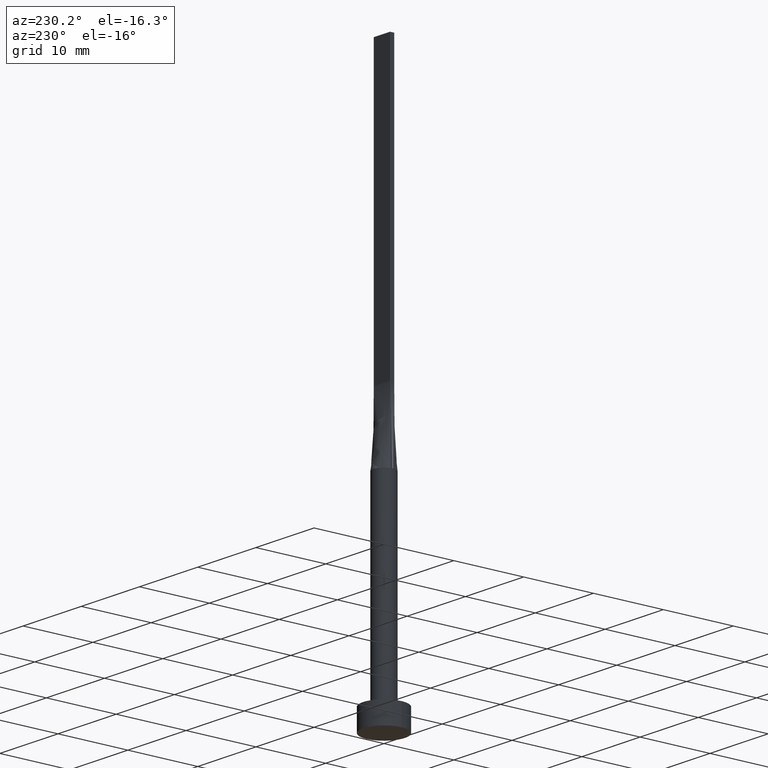
[diagram: clean part render]
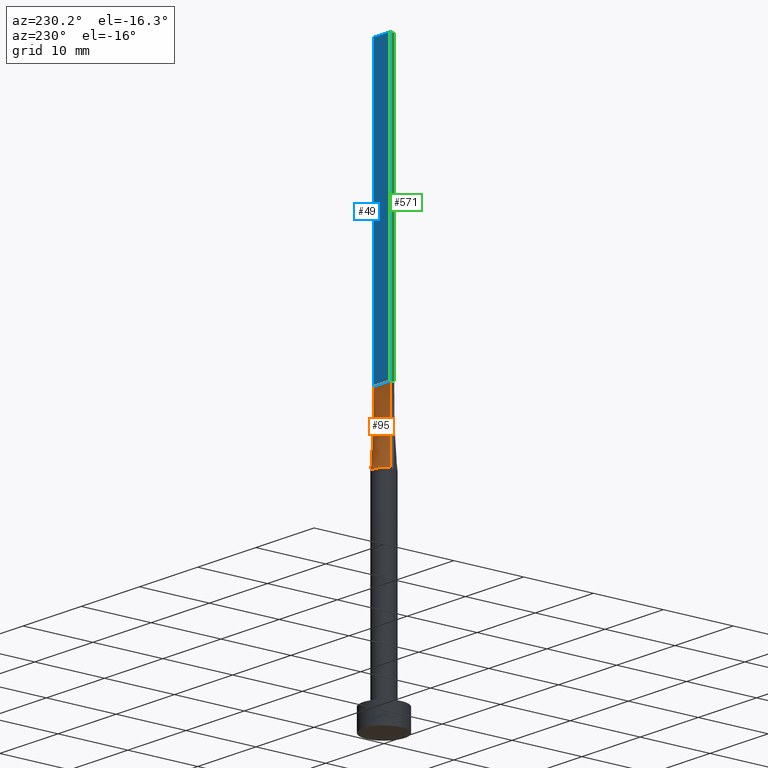
[diagram: same view with three faces highlighted in distinct colors, each labeled with its STEP entity id]
A machine part, auxiliary view with three faces highlighted in distinct colors.
Their STEP definitions:

[orange] entity #95 — the highlighted face is a freeform B-spline surface patch.
#22 = VERTEX_POINT ( 'NONE', #295 ) ;
#24 = CARTESIAN_POINT ( 'NONE',  ( 1.283333333333333437, 0.3000000000000002109, 40.00000000000000000 ) ) ;
#26 = CARTESIAN_POINT ( 'NONE',  ( 1.466825456746648992, 0.3143198820638501978, 30.00000000000000000 ) ) ;
#27 = CARTESIAN_POINT ( 'NONE',  ( -1.399999999999999689, 0.3000000000000002109, 40.00000000000000000 ) ) ;
#30 = VERTEX_POINT ( 'NONE', #244 ) ;
#31 = CARTESIAN_POINT ( 'NONE',  ( 1.261673556793541540, 0.8246322331683844098, 29.99999999999998579 ) ) ;
#34 = FACE_OUTER_BOUND ( 'NONE', #125, .T. ) ;
#35 = ORIENTED_EDGE ( 'NONE', *, *, #258, .F. ) ;
#36 = CARTESIAN_POINT ( 'NONE',  ( 1.398339371956842880, 0.5625704264602660043, 29.99999999999999645 ) ) ;
#38 = ORIENTED_EDGE ( 'NONE', *, *, #383, .F. ) ;
#39 = CARTESIAN_POINT ( 'NONE',  ( 0.7614511870148451544, 1.306864626778804883, 30.00000000000000711 ) ) ;
#55 = DIRECTION ( 'NONE',  ( -0.006670206908340766024, -0.001429330051787238700, 0.9999767324070110153 ) ) ;
#67 = CARTESIAN_POINT ( 'NONE',  ( 1.433351810558057160, 0.3071468165481550106, 35.00000000000000000 ) ) ;
#70 = VECTOR ( 'NONE', #411, 1000.000000000000000 ) ;
#77 = CARTESIAN_POINT ( 'NONE',  ( -1.261673556793542872, 0.8246322331683846318, 30.00000000000000711 ) ) ;
#78 = CARTESIAN_POINT ( 'NONE',  ( -0.9173979595380679086, 1.199399801402030397, 30.00000000000000000 ) ) ;
#79 = CARTESIAN_POINT ( 'NONE',  ( -0.8166666666666656527, 0.3000000000000002665, 40.00000000000000000 ) ) ;
#88 = CARTESIAN_POINT ( 'NONE',  ( 1.441093865018553410, 0.4338058282182615244, 30.00000000000000711 ) ) ;
#95 = ADVANCED_FACE ( 'NONE', ( #34 ), #536, .T. ) ;
#99 = LINE ( 'NONE', #107, #167 ) ;
#105 = CARTESIAN_POINT ( 'NONE',  ( -1.399999999999999689, 0.3000000000000002109, 40.00000000000000000 ) ) ;
#107 = CARTESIAN_POINT ( 'NONE',  ( -1.433351810558057160, 0.3071468165481554546, 35.00000000000000000 ) ) ;
#119 = B_SPLINE_CURVE_WITH_KNOTS ( 'NONE', 3,
 ( #26, #168, #36, #31, #122, #345, #397, #218, #481, #572, #212, #213, #78, #259, #437, #520, #568, #172 ),
 .UNSPECIFIED., .F., .F.,
 ( 4, 2, 2, 2, 2, 2, 2, 2, 4 ),
 ( 0.000000000000000000, 0.1249999999999999445, 0.2499999999999998890, 0.3749999999999998890, 0.4999999999999998890, 0.6249999999999998890, 0.7500000000000000000, 0.8749999999999998890, 1.000000000000000000 ),
 .UNSPECIFIED. ) ;
#120 = CARTESIAN_POINT ( 'NONE',  ( -1.441093865018553410, 0.4338058282182611913, 29.99999999999999289 ) ) ;
#122 = CARTESIAN_POINT ( 'NONE',  ( 1.167251067653077401, 0.9579686032593092149, 30.00000000000000355 ) ) ;
#125 = EDGE_LOOP ( 'NONE', ( #382, #268, #35, #38 ) ) ;
#165 = CARTESIAN_POINT ( 'NONE',  ( -1.398339371956843102, 0.5625704264602656712, 29.99999999999999289 ) ) ;
#167 = VECTOR ( 'NONE', #251, 1000.000000000000114 ) ;
#168 = CARTESIAN_POINT ( 'NONE',  ( 1.441093865018553410, 0.4338058282182615244, 30.00000000000000711 ) ) ;
#172 = CARTESIAN_POINT ( 'NONE',  ( -1.466842056764351865, 0.3143233427268645186, 30.00000000000000000 ) ) ;
#173 = CARTESIAN_POINT ( 'NONE',  ( 0.4035854070682468042, 1.457676878506885654, 30.00000000000000000 ) ) ;
#182 = CARTESIAN_POINT ( 'NONE',  ( 0.2021039475585061640, 1.500000000000000222, 30.00000000000000711 ) ) ;
#187 = EDGE_CURVE ( 'NONE', #30, #22, #119, .T. ) ;
#194 = LINE ( 'NONE', #105, #70 ) ;
#211 = CARTESIAN_POINT ( 'NONE',  ( 1.261673556793541540, 0.8246322331683844098, 29.99999999999998579 ) ) ;
#212 = CARTESIAN_POINT ( 'NONE',  ( -0.4035854070682471928, 1.457676878506885432, 30.00000000000000711 ) ) ;
#213 = CARTESIAN_POINT ( 'NONE',  ( -0.7614511870148460426, 1.306864626778804661, 30.00000000000001776 ) ) ;
#218 = CARTESIAN_POINT ( 'NONE',  ( 0.4035854070682468042, 1.457676878506885654, 30.00000000000000000 ) ) ;
#219 = CARTESIAN_POINT ( 'NONE',  ( 0.9333333333333340143, 0.3000000000000002109, 39.99999999999999289 ) ) ;
#222 = CARTESIAN_POINT ( 'NONE',  ( -1.167251067653078289, 0.9579686032593087708, 30.00000000000001776 ) ) ;
#223 = CARTESIAN_POINT ( 'NONE',  ( 1.399999999999999689, 0.3000000000000002109, 40.00000000000000000 ) ) ;
#225 = CARTESIAN_POINT ( 'NONE',  ( 1.466703621116114409, 0.3142936330963102542, 30.00000000000000000 ) ) ;
#244 = CARTESIAN_POINT ( 'NONE',  ( 1.466825456746648992, 0.3143198820638501978, 30.00000000000000000 ) ) ;
#251 = DIRECTION ( 'NONE',  ( 0.006670206908340743472, -0.001429330051787325653, 0.9999767324070110153 ) ) ;
#255 = CARTESIAN_POINT ( 'NONE',  ( 1.166666666666666963, 0.3000000000000002109, 40.00000000000000000 ) ) ;
#258 = EDGE_CURVE ( 'NONE', #270, #421, #194, .T. ) ;
#259 = CARTESIAN_POINT ( 'NONE',  ( -1.167251067653078289, 0.9579686032593087708, 30.00000000000001776 ) ) ;
#263 = CARTESIAN_POINT ( 'NONE',  ( -0.4666666666666651198, 0.3000000000000001554, 39.99999999999999289 ) ) ;
#268 = ORIENTED_EDGE ( 'NONE', *, *, #392, .T. ) ;
#270 = VERTEX_POINT ( 'NONE', #498 ) ;
#295 = CARTESIAN_POINT ( 'NONE',  ( -1.466842056764351865, 0.3143233427268645186, 30.00000000000000000 ) ) ;
#305 = CARTESIAN_POINT ( 'NONE',  ( 0.5833333333333345916, 0.3000000000000001554, 39.99999999999999289 ) ) ;
#341 = CARTESIAN_POINT ( 'NONE',  ( -1.466703621116114187, 0.3142936330963106428, 30.00000000000000000 ) ) ;
#345 = CARTESIAN_POINT ( 'NONE',  ( 0.9173979595380679086, 1.199399801402031285, 30.00000000000001066 ) ) ;
#346 = CARTESIAN_POINT ( 'NONE',  ( 0.4666666666666679508, 0.3000000000000001554, 39.99999999999999289 ) ) ;
#350 = CARTESIAN_POINT ( 'NONE',  ( 1.398339371956842880, 0.5625704264602660043, 29.99999999999999645 ) ) ;
#355 = CARTESIAN_POINT ( 'NONE',  ( 0.1166666666666680424, 0.3000000000000001554, 39.99999999999999289 ) ) ;
#376 = CARTESIAN_POINT ( 'NONE',  ( -1.399999999999999689, 0.3000000000000002109, 40.00000000000000000 ) ) ;
#382 = ORIENTED_EDGE ( 'NONE', *, *, #187, .T. ) ;
#383 = EDGE_CURVE ( 'NONE', #30, #270, #471, .T. ) ;
#385 = CARTESIAN_POINT ( 'NONE',  ( -0.2333333333333317550, 0.3000000000000001554, 39.99999999999999289 ) ) ;
#386 = CARTESIAN_POINT ( 'NONE',  ( -1.166666666666666075, 0.3000000000000002665, 40.00000000000000000 ) ) ;
#388 = CARTESIAN_POINT ( 'NONE',  ( -0.9333333333333324600, 0.3000000000000002665, 40.00000000000000000 ) ) ;
#392 = EDGE_CURVE ( 'NONE', #22, #421, #99, .T. ) ;
#397 = CARTESIAN_POINT ( 'NONE',  ( 0.7614511870148451544, 1.306864626778804883, 30.00000000000000711 ) ) ;
#402 = CARTESIAN_POINT ( 'NONE',  ( 0.2333333333333347526, 0.3000000000000001554, 39.99999999999999289 ) ) ;
#411 = DIRECTION ( 'NONE',  ( -1.000000000000000000, -0.000000000000000000, -0.000000000000000000 ) ) ;
#421 = VERTEX_POINT ( 'NONE', #376 ) ;
#434 = CARTESIAN_POINT ( 'NONE',  ( -0.4035854070682471928, 1.457676878506885432, 30.00000000000000711 ) ) ;
#436 = CARTESIAN_POINT ( 'NONE',  ( -0.9173979595380679086, 1.199399801402030397, 30.00000000000000000 ) ) ;
#437 = CARTESIAN_POINT ( 'NONE',  ( -1.261673556793542872, 0.8246322331683846318, 30.00000000000000711 ) ) ;
#447 = CARTESIAN_POINT ( 'NONE',  ( 1.167251067653077401, 0.9579686032593092149, 30.00000000000000355 ) ) ;
#471 = LINE ( 'NONE', #67, #479 ) ;
#479 = VECTOR ( 'NONE', #55, 1000.000000000000114 ) ;
#481 = CARTESIAN_POINT ( 'NONE',  ( 0.2021039475585061640, 1.500000000000000222, 30.00000000000000711 ) ) ;
#483 = CARTESIAN_POINT ( 'NONE',  ( -0.2021039475585064971, 1.499999999999999556, 30.00000000000001066 ) ) ;
#498 = CARTESIAN_POINT ( 'NONE',  ( 1.399999999999999689, 0.3000000000000002109, 40.00000000000000000 ) ) ;
#519 = CARTESIAN_POINT ( 'NONE',  ( -1.283333333333332993, 0.3000000000000002665, 40.00000000000000000 ) ) ;
#520 = CARTESIAN_POINT ( 'NONE',  ( -1.398339371956843102, 0.5625704264602656712, 29.99999999999999289 ) ) ;
#521 = CARTESIAN_POINT ( 'NONE',  ( -0.7614511870148460426, 1.306864626778804661, 30.00000000000001776 ) ) ;
#531 = CARTESIAN_POINT ( 'NONE',  ( -0.1166666666666652252, 0.3000000000000001554, 39.99999999999999289 ) ) ;
#536 = B_SPLINE_SURFACE_WITH_KNOTS ( 'NONE', 3, 1, ( 
 ( #225, #223 ),
 ( #88, #24 ),
 ( #350, #255 ),
 ( #211, #219 ),
 ( #447, #569 ),
 ( #573, #305 ),
 ( #39, #346 ),
 ( #173, #402 ),
 ( #182, #355 ),
 ( #483, #531 ),
 ( #434, #385 ),
 ( #521, #263 ),
 ( #436, #560 ),
 ( #222, #79 ),
 ( #77, #388 ),
 ( #165, #386 ),
 ( #120, #519 ),
 ( #341, #27 ) ),
 .UNSPECIFIED., .F., .F., .F.,
 ( 4, 2, 2, 2, 2, 2, 2, 2, 4 ),
 ( 2, 2 ),
 ( 0.000000000000000000, 0.1249999999999999445, 0.2499999999999998890, 0.3749999999999998890, 0.4999999999999998890, 0.6249999999999998890, 0.7500000000000000000, 0.8749999999999998890, 1.000000000000000000 ),
 ( 0.000000000000000000, 1.000000000000000000 ),
 .UNSPECIFIED. ) ;
#560 = CARTESIAN_POINT ( 'NONE',  ( -0.5833333333333319271, 0.3000000000000002109, 39.99999999999999289 ) ) ;
#568 = CARTESIAN_POINT ( 'NONE',  ( -1.441093865018553410, 0.4338058282182611913, 29.99999999999999289 ) ) ;
#569 = CARTESIAN_POINT ( 'NONE',  ( 0.8166666666666674290, 0.3000000000000001554, 39.99999999999999289 ) ) ;
#572 = CARTESIAN_POINT ( 'NONE',  ( -0.2021039475585064971, 1.499999999999999556, 30.00000000000001066 ) ) ;
#573 = CARTESIAN_POINT ( 'NONE',  ( 0.9173979595380679086, 1.199399801402031285, 30.00000000000001066 ) ) ;

[blue] entity #49 — the highlighted planar face has unit normal (0, -1, 0).
#6 = CARTESIAN_POINT ( 'NONE',  ( -1.399999999999999689, 0.3000000000000002109, 80.00000000000000000 ) ) ;
#23 = ORIENTED_EDGE ( 'NONE', *, *, #432, .T. ) ;
#40 = ORIENTED_EDGE ( 'NONE', *, *, #214, .F. ) ;
#49 = ADVANCED_FACE ( 'NONE', ( #352 ), #441, .F. ) ;
#56 = DIRECTION ( 'NONE',  ( -1.000000000000000000, 0.000000000000000000, 0.000000000000000000 ) ) ;
#70 = VECTOR ( 'NONE', #411, 1000.000000000000000 ) ;
#81 = DIRECTION ( 'NONE',  ( 0.000000000000000000, -1.000000000000000000, 0.000000000000000000 ) ) ;
#90 = ORIENTED_EDGE ( 'NONE', *, *, #258, .T. ) ;
#105 = CARTESIAN_POINT ( 'NONE',  ( -1.399999999999999689, 0.3000000000000002109, 40.00000000000000000 ) ) ;
#130 = AXIS2_PLACEMENT_3D ( 'NONE', #529, #81, #566 ) ;
#142 = DIRECTION ( 'NONE',  ( -0.000000000000000000, -0.000000000000000000, -1.000000000000000000 ) ) ;
#143 = CARTESIAN_POINT ( 'NONE',  ( 1.399999999999999689, 0.3000000000000002109, 80.00000000000000000 ) ) ;
#193 = CARTESIAN_POINT ( 'NONE',  ( 1.399999999999999689, 0.3000000000000002109, 80.00000000000000000 ) ) ;
#194 = LINE ( 'NONE', #105, #70 ) ;
#200 = VERTEX_POINT ( 'NONE', #143 ) ;
#214 = EDGE_CURVE ( 'NONE', #200, #474, #469, .T. ) ;
#247 = CARTESIAN_POINT ( 'NONE',  ( 1.399999999999999689, 0.3000000000000002109, 80.00000000000000000 ) ) ;
#248 = VECTOR ( 'NONE', #511, 1000.000000000000000 ) ;
#254 = ORIENTED_EDGE ( 'NONE', *, *, #281, .F. ) ;
#258 = EDGE_CURVE ( 'NONE', #270, #421, #194, .T. ) ;
#261 = VECTOR ( 'NONE', #142, 1000.000000000000000 ) ;
#270 = VERTEX_POINT ( 'NONE', #498 ) ;
#281 = EDGE_CURVE ( 'NONE', #474, #421, #548, .T. ) ;
#282 = CARTESIAN_POINT ( 'NONE',  ( -1.399999999999999689, 0.3000000000000002109, 80.00000000000000000 ) ) ;
#314 = EDGE_LOOP ( 'NONE', ( #90, #254, #40, #23 ) ) ;
#331 = LINE ( 'NONE', #193, #261 ) ;
#352 = FACE_OUTER_BOUND ( 'NONE', #314, .T. ) ;
#360 = VECTOR ( 'NONE', #56, 1000.000000000000000 ) ;
#376 = CARTESIAN_POINT ( 'NONE',  ( -1.399999999999999689, 0.3000000000000002109, 40.00000000000000000 ) ) ;
#411 = DIRECTION ( 'NONE',  ( -1.000000000000000000, -0.000000000000000000, -0.000000000000000000 ) ) ;
#421 = VERTEX_POINT ( 'NONE', #376 ) ;
#432 = EDGE_CURVE ( 'NONE', #200, #270, #331, .T. ) ;
#441 = PLANE ( 'NONE',  #130 ) ;
#469 = LINE ( 'NONE', #247, #360 ) ;
#474 = VERTEX_POINT ( 'NONE', #6 ) ;
#498 = CARTESIAN_POINT ( 'NONE',  ( 1.399999999999999689, 0.3000000000000002109, 40.00000000000000000 ) ) ;
#511 = DIRECTION ( 'NONE',  ( -0.000000000000000000, -0.000000000000000000, -1.000000000000000000 ) ) ;
#529 = CARTESIAN_POINT ( 'NONE',  ( 1.399999999999999689, 0.3000000000000002109, 80.00000000000000000 ) ) ;
#548 = LINE ( 'NONE', #282, #248 ) ;
#566 = DIRECTION ( 'NONE',  ( 0.000000000000000000, -0.000000000000000000, -1.000000000000000000 ) ) ;

[green] entity #571 — the highlighted planar face has unit normal (1, -0, 0).
#6 = CARTESIAN_POINT ( 'NONE',  ( -1.399999999999999689, 0.3000000000000002109, 80.00000000000000000 ) ) ;
#60 = LINE ( 'NONE', #323, #114 ) ;
#71 = ORIENTED_EDGE ( 'NONE', *, *, #117, .T. ) ;
#114 = VECTOR ( 'NONE', #502, 1000.000000000000000 ) ;
#117 = EDGE_CURVE ( 'NONE', #421, #160, #265, .T. ) ;
#123 = DIRECTION ( 'NONE',  ( -3.614007241618349264E-16, -1.000000000000000000, 0.000000000000000000 ) ) ;
#146 = DIRECTION ( 'NONE',  ( 1.000000000000000000, -3.614007241618349264E-16, 0.000000000000000000 ) ) ;
#160 = VERTEX_POINT ( 'NONE', #303 ) ;
#206 = PLANE ( 'NONE',  #449 ) ;
#207 = ORIENTED_EDGE ( 'NONE', *, *, #281, .T. ) ;
#227 = VECTOR ( 'NONE', #363, 1000.000000000000000 ) ;
#248 = VECTOR ( 'NONE', #511, 1000.000000000000000 ) ;
#264 = EDGE_LOOP ( 'NONE', ( #71, #338, #477, #207 ) ) ;
#265 = LINE ( 'NONE', #523, #528 ) ;
#281 = EDGE_CURVE ( 'NONE', #474, #421, #548, .T. ) ;
#282 = CARTESIAN_POINT ( 'NONE',  ( -1.399999999999999689, 0.3000000000000002109, 80.00000000000000000 ) ) ;
#303 = CARTESIAN_POINT ( 'NONE',  ( -1.399999999999999911, -0.2999999999999996003, 40.00000000000000000 ) ) ;
#320 = CARTESIAN_POINT ( 'NONE',  ( -1.399999999999999911, -0.2999999999999996003, 80.00000000000000000 ) ) ;
#323 = CARTESIAN_POINT ( 'NONE',  ( -1.399999999999999689, 0.3000000000000002109, 80.00000000000000000 ) ) ;
#338 = ORIENTED_EDGE ( 'NONE', *, *, #423, .F. ) ;
#358 = FACE_OUTER_BOUND ( 'NONE', #264, .T. ) ;
#363 = DIRECTION ( 'NONE',  ( -0.000000000000000000, -0.000000000000000000, -1.000000000000000000 ) ) ;
#376 = CARTESIAN_POINT ( 'NONE',  ( -1.399999999999999689, 0.3000000000000002109, 40.00000000000000000 ) ) ;
#380 = DIRECTION ( 'NONE',  ( 3.614007241618349264E-16, 1.000000000000000000, 0.000000000000000000 ) ) ;
#417 = VERTEX_POINT ( 'NONE', #546 ) ;
#421 = VERTEX_POINT ( 'NONE', #376 ) ;
#423 = EDGE_CURVE ( 'NONE', #417, #160, #550, .T. ) ;
#449 = AXIS2_PLACEMENT_3D ( 'NONE', #534, #146, #380 ) ;
#474 = VERTEX_POINT ( 'NONE', #6 ) ;
#477 = ORIENTED_EDGE ( 'NONE', *, *, #578, .F. ) ;
#502 = DIRECTION ( 'NONE',  ( -3.614007241618349264E-16, -1.000000000000000000, 0.000000000000000000 ) ) ;
#511 = DIRECTION ( 'NONE',  ( -0.000000000000000000, -0.000000000000000000, -1.000000000000000000 ) ) ;
#523 = CARTESIAN_POINT ( 'NONE',  ( -1.399999999999999689, 0.3000000000000002109, 40.00000000000000000 ) ) ;
#528 = VECTOR ( 'NONE', #123, 1000.000000000000000 ) ;
#534 = CARTESIAN_POINT ( 'NONE',  ( -1.399999999999999689, 0.3000000000000002109, 80.00000000000000000 ) ) ;
#546 = CARTESIAN_POINT ( 'NONE',  ( -1.399999999999999911, -0.2999999999999996003, 80.00000000000000000 ) ) ;
#548 = LINE ( 'NONE', #282, #248 ) ;
#550 = LINE ( 'NONE', #320, #227 ) ;
#571 = ADVANCED_FACE ( 'NONE', ( #358 ), #206, .F. ) ;
#578 = EDGE_CURVE ( 'NONE', #474, #417, #60, .T. ) ;